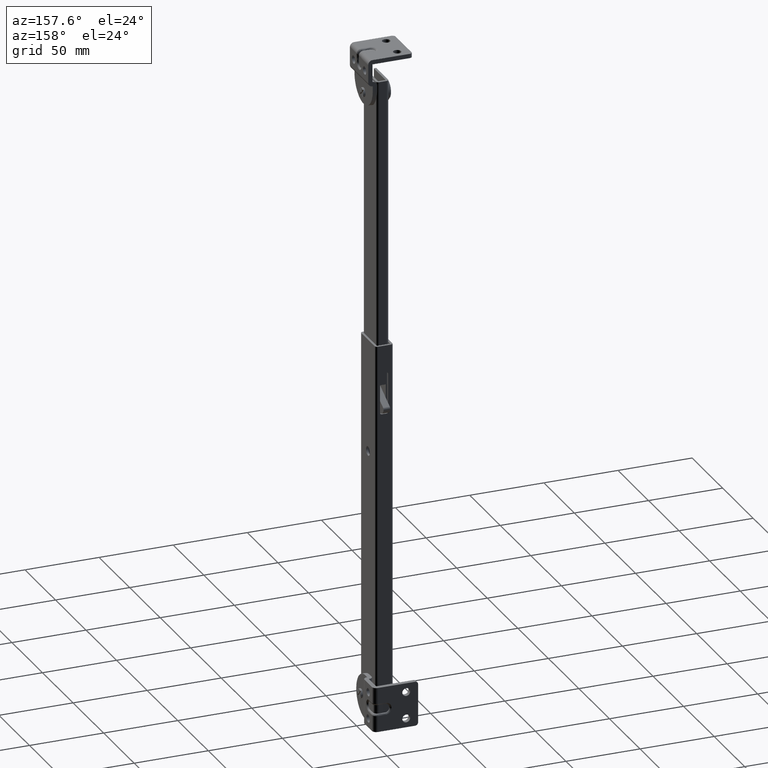
[diagram: clean part render]
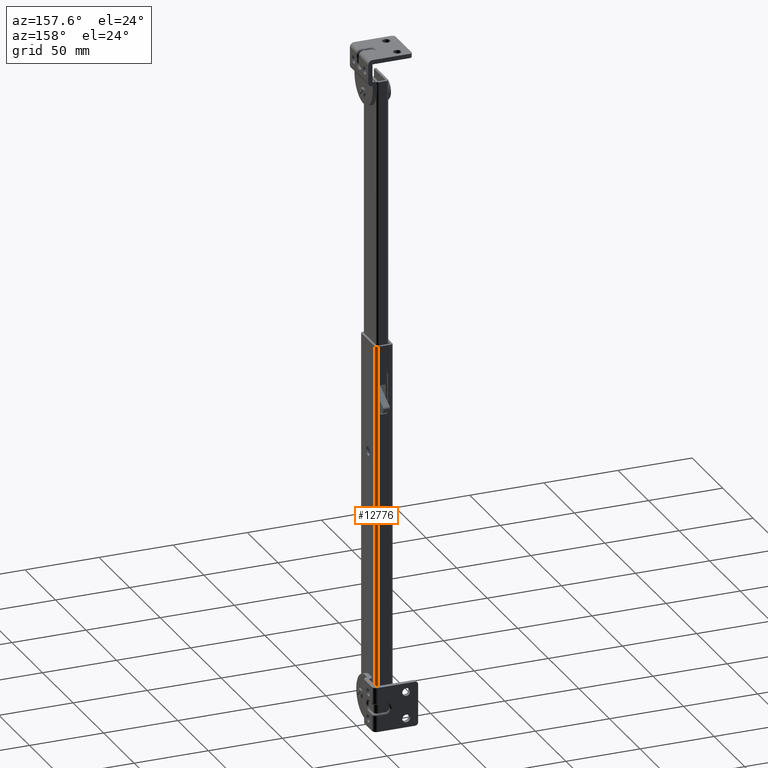
[diagram: same view with one face highlighted and labeled with its STEP entity id]
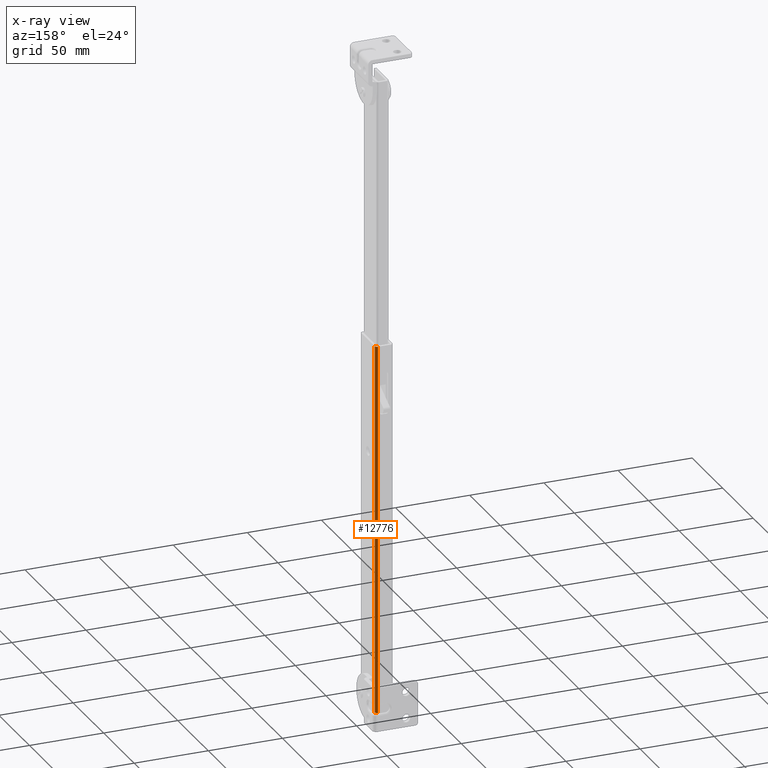
[diagram: x-ray of the same camera — body ghosted, the highlighted face saturated]
A machine part, auxiliary view. The second image highlights one B-rep face of the part: STEP entity #12776.
The next image is the same camera in x-ray: the body ghosted, the highlighted face saturated — about 0% of this face is hidden behind the body in this view.
In plain terms, the highlighted face is a freeform B-spline surface patch.
Its self-contained STEP definition (entity closure, byte-faithful):
#12308=CARTESIAN_POINT('',(-7.699996999999910,10.905368555568799,-9.500000000000000));
#12309=VERTEX_POINT('',#12308);
#12310=CARTESIAN_POINT('',(-9.297458178661950,12.500000000000000,-9.500000000000000));
#12311=VERTEX_POINT('',#12310);
#12312=CARTESIAN_POINT('',(-7.699996999999898,10.905368555568799,-9.500000000000000));
#12313=CARTESIAN_POINT('',(-7.705337135456706,12.497482633235878,-9.500000000000000));
#12314=CARTESIAN_POINT('',(-9.297458178661950,12.500000000000000,-9.500000000000000));
#12322=(BOUNDED_CURVE()B_SPLINE_CURVE(2,(#12312,#12313,#12314),.UNSPECIFIED.,.F.,.U.)CURVE()GEOMETRIC_REPRESENTATION_ITEM()QUASI_UNIFORM_CURVE()RATIONAL_B_SPLINE_CURVE((1.0,0.708849498299977,1.0))REPRESENTATION_ITEM(''));
#12323=EDGE_CURVE('',#12309,#12311,#12322,.T.);
#12436=CARTESIAN_POINT('',(-7.699996999999910,10.905368555568820,240.500000000000000));
#12437=VERTEX_POINT('',#12436);
#12438=CARTESIAN_POINT('',(-9.297458178661950,12.500000000000000,240.500000000000000));
#12439=VERTEX_POINT('',#12438);
#12440=CARTESIAN_POINT('',(-7.699996999999898,10.905368555568820,240.500000000000000));
#12441=CARTESIAN_POINT('',(-7.705337135456701,12.497482633235901,240.500000000000000));
#12442=CARTESIAN_POINT('',(-9.297458178661950,12.500000000000020,240.500000000000000));
#12450=(BOUNDED_CURVE()B_SPLINE_CURVE(2,(#12440,#12441,#12442),.UNSPECIFIED.,.F.,.U.)CURVE()GEOMETRIC_REPRESENTATION_ITEM()QUASI_UNIFORM_CURVE()RATIONAL_B_SPLINE_CURVE((1.0,0.708849498299977,1.0))REPRESENTATION_ITEM(''));
#12451=EDGE_CURVE('',#12437,#12439,#12450,.T.);
#12597=CARTESIAN_POINT('',(-7.699996999999910,10.905368555568820,240.500000000000000));
#12598=CARTESIAN_POINT('',(-7.699996999999910,10.905368555568799,-9.500000000000000));
#12599=QUASI_UNIFORM_CURVE('',1,(#12597,#12598),.UNSPECIFIED.,.F.,.U.);
#12600=EDGE_CURVE('',#12437,#12309,#12599,.T.);
#12738=CARTESIAN_POINT('',(-9.297458178661950,12.500000000000000,240.500000000000000));
#12739=CARTESIAN_POINT('',(-9.297458178661950,12.500000000000000,-9.500000000000000));
#12740=QUASI_UNIFORM_CURVE('',1,(#12738,#12739),.UNSPECIFIED.,.F.,.U.);
#12741=EDGE_CURVE('',#12439,#12311,#12740,.T.);
#12756=CARTESIAN_POINT('',(-7.701285751036748,10.835572820587011,246.750000000000000));
#12757=CARTESIAN_POINT('',(-7.701285751036748,10.835572820586981,-15.906250000000000));
#12758=CARTESIAN_POINT('',(-7.630973639826400,12.580250175559170,246.750000000000060));
#12759=CARTESIAN_POINT('',(-7.630973639826405,12.580250175559135,-15.906249999999995));
#12760=CARTESIAN_POINT('',(-9.375140075007089,12.498236077230940,246.750000000000000));
#12761=CARTESIAN_POINT('',(-9.375140075007094,12.498236077230899,-15.906250000000000));
#12769=(BOUNDED_SURFACE()B_SPLINE_SURFACE(1,2,((#12756,#12758,#12760),(#12757,#12759,#12761)),.UNSPECIFIED.,.F.,.F.,.U.)B_SPLINE_SURFACE_WITH_KNOTS((2,2),(3,3),(0.0,262.656250000000000),(0.0,2.816067397707732),.UNSPECIFIED.)GEOMETRIC_REPRESENTATION_ITEM()RATIONAL_B_SPLINE_SURFACE(((1.0,0.675590207615661,1.0),(1.0,0.675590207615661,1.0)))REPRESENTATION_ITEM('')SURFACE());
#12770=ORIENTED_EDGE('',*,*,#12323,.T.);
#12771=ORIENTED_EDGE('',*,*,#12741,.F.);
#12772=ORIENTED_EDGE('',*,*,#12451,.F.);
#12773=ORIENTED_EDGE('',*,*,#12600,.T.);
#12774=EDGE_LOOP('',(#12770,#12771,#12772,#12773));
#12775=FACE_OUTER_BOUND('',#12774,.T.);
#12776=ADVANCED_FACE('',(#12775),#12769,.T.);